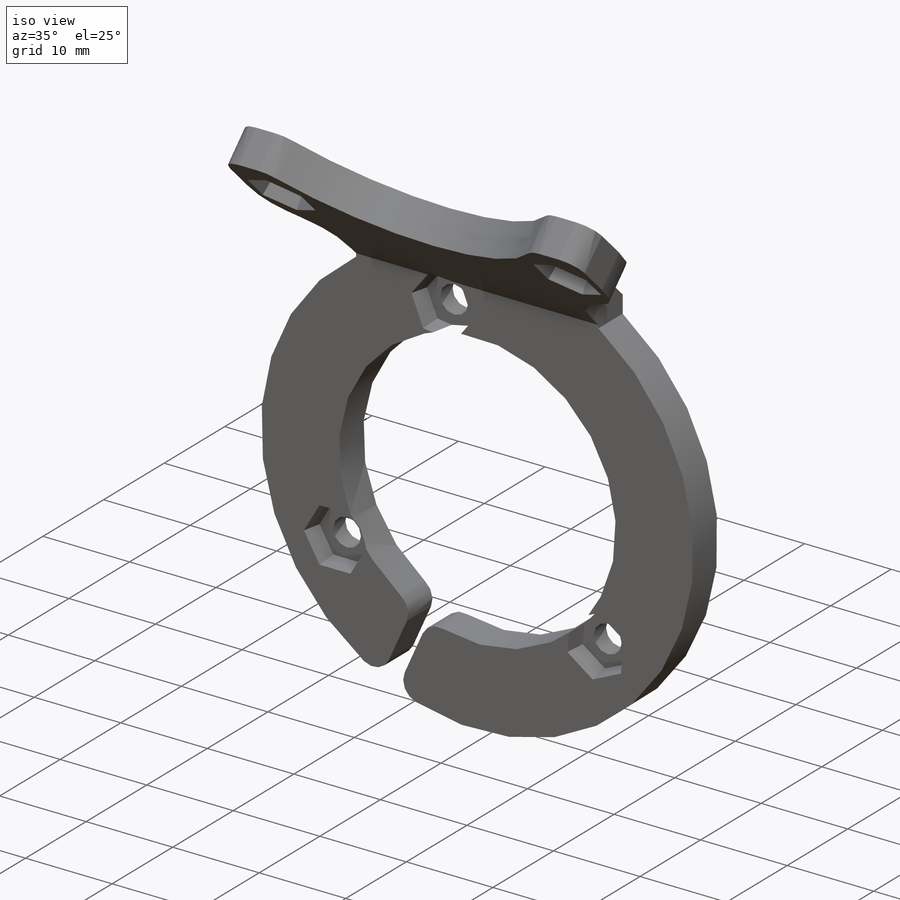
[diagram: iso view]
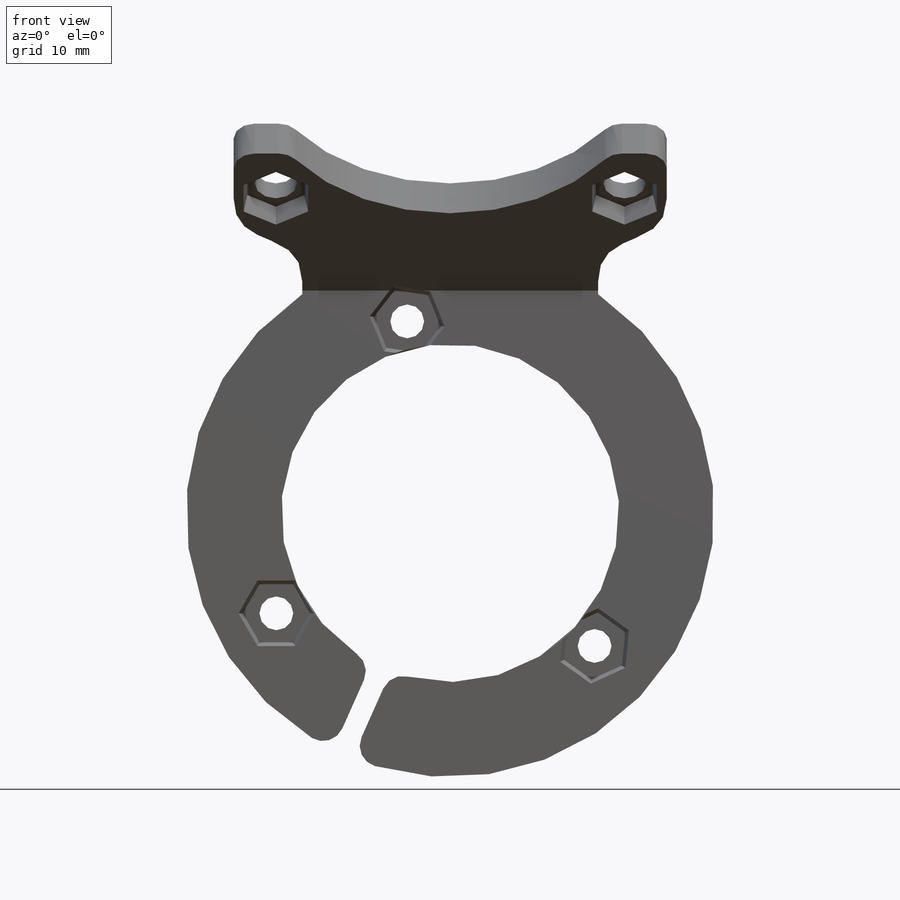
[diagram: front view]
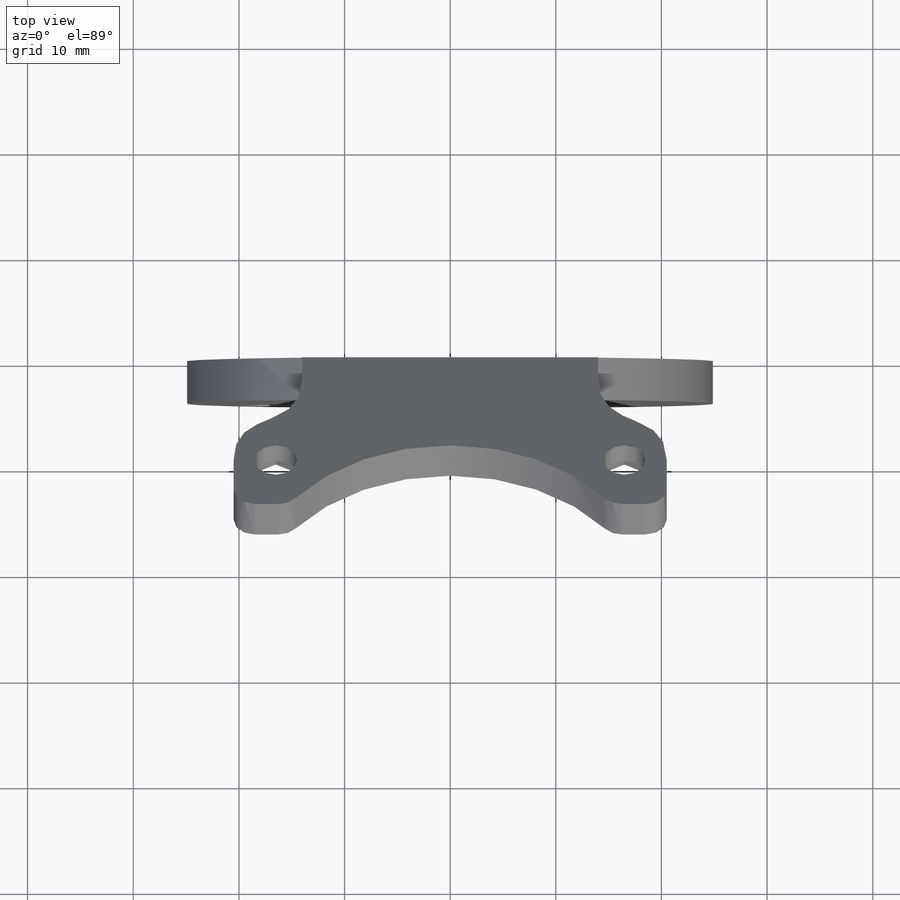
[diagram: top view]
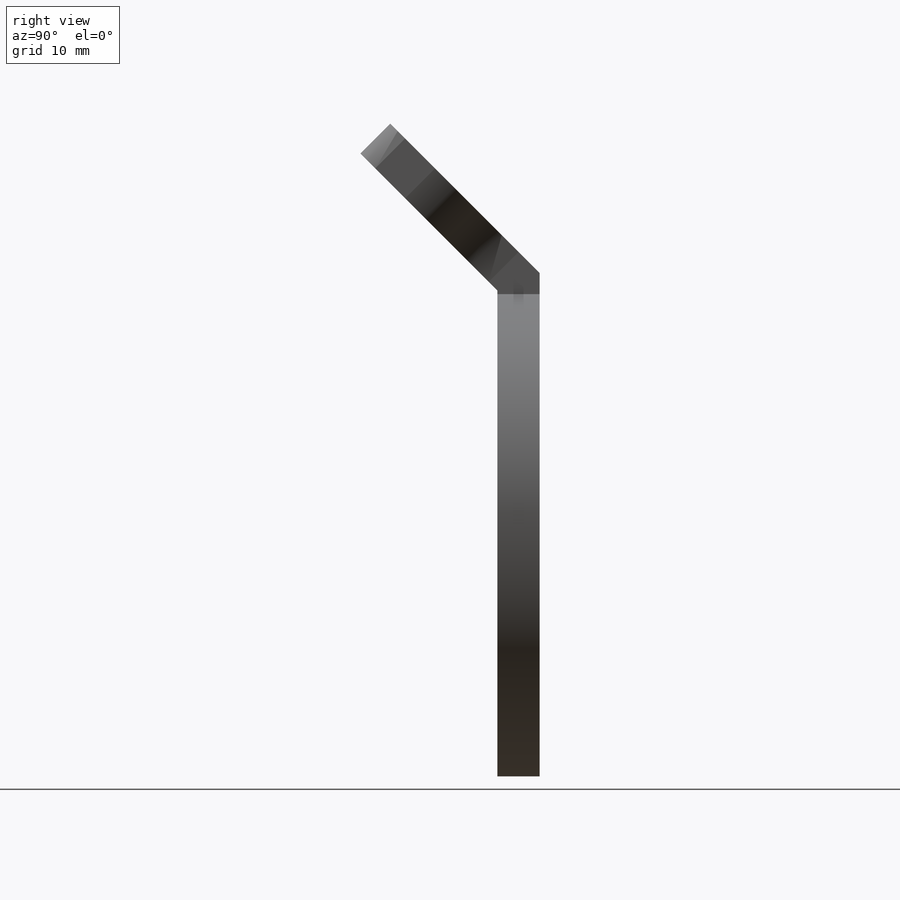
[diagram: right view]
SOLIDWORKS PART (.sldprt)
format: sldprt  version: not decoded by parser v0  size: 364,032 bytes
history: native  units: mm
features: sketch x10, cut_extrude x7, extrude x3, fillet x2, material x1, plane x1, mirror x1 (+11 scaffold rows collapsed)
feature tree (36):
  scaffold x11  (default folders/planes/origin — collapsed)
  material  "Material <not specified>"
  sketch  "Sketch1"  dims[D1=32.0mm D2=9.0mm]
  extrude  "Boss-Extrude1"  Depth=4mm
  sketch  "Sketch2"
  cut_extrude  "Cut-Effector Holes"  [1 undecoded]
  sketch  "Sketch10"  dims[D1=28.0mm]
  cut_extrude  "Cut-Extrude6"  [1 undecoded]
  sketch  "Sketch3"  dims[c1.D1=28.0mm c1.D2=0.5mm c2.D1=2.0mm]
  extrude  "Boss-Fan Extension"  [1 undecoded]
  plane  "Plane-Fan Plane"
  sketch  "Sketch4"  dims[c1.D3=~21.804409mm c1.D1=14.0mm c1.D2=20.5mm c2.D3=6.0mm c2.D1=6.0mm c3.D3=14.0mm]
  extrude  "Boss-Fan Boss"  Depth=4mm
  sketch  "Sketch5"  dims[c1.D1=4.0mm c1.D2=6.0mm c1.D3=16.5mm c2.D2=6.0mm]
  cut_extrude  "Cut-Fan Screw"  [1 undecoded]
  mirror  "Mirror-Fan Screw"
  sketch  "Sketch6"  dims[D1=37.0mm]
  cut_extrude  "Cut-Fan Hole"  [1 undecoded]
  fillet  "Fillet1"  Radius=2mm
  sketch  "Sketch7"  dims[D1=5.5mm]
  cut_extrude  "Cut-Extrude4"  Depth=2mm
  sketch  "Sketch8"  dims[D1=2.0mm]
  cut_extrude  "Cut-Extrude5"  [1 undecoded]
  fillet  "Fillet2"  Radius=2mm
  sketch  "Sketch11"  dims[D1=~3.70247mm]
  cut_extrude  "Cut-Extrude7"  Depth=2mm
decode coverage: 15 of 23 modeling features carry decoded parameters
note: ~ marks probable driven/reference dimensions
note: 6 parameter values undecoded
summary: no parameter record found for 6 features
note: suppression state not decoded; provenance and decode notes live in map.json
